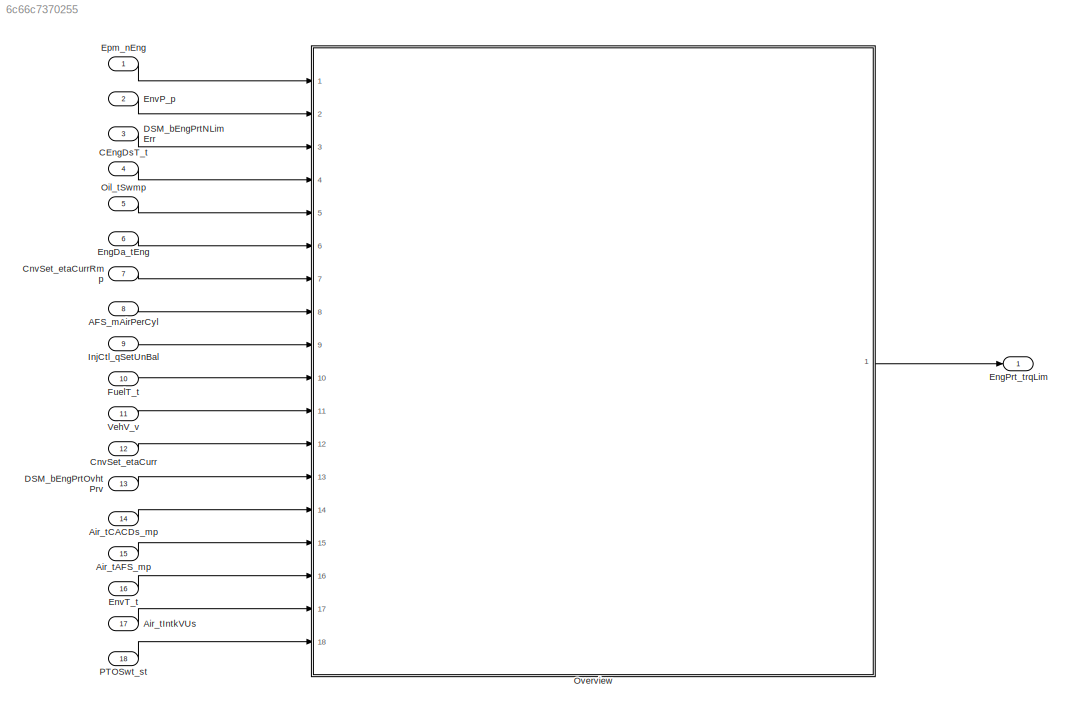
MODEL slx_6c66c7370255
KIND model
CONFIG AbsTol = auto
CONFIG EnableMultiTasking = off
CONFIG FixedStep = auto
CONFIG MaxStep = auto
CONFIG MinStep = auto
CONFIG RelTol = 1e-3
CONFIG SampleTimeConstraint = Unconstrained
CONFIG Solver = VariableStepAuto
CONFIG SolverName = VariableStepAuto
CONFIG StartTime = 0.0
CONFIG StopTime = 10.0
BLOCK [Inport] AFS_mAirPerCyl
  IconDisplay = Port number
  Port = 8
BLOCK [Inport] Air_tAFS_mp
  IconDisplay = Port number
  Port = 15
BLOCK [Inport] Air_tCACDs_mp
  IconDisplay = Port number
  Port = 14
BLOCK [Inport] Air_tIntkVUs
  IconDisplay = Port number
  Port = 17
BLOCK [Inport] CEngDsT_t
  IconDisplay = Port number
  Port = 4
BLOCK [Inport] CnvSet_etaCurr
  IconDisplay = Port number
  Port = 12
BLOCK [Inport] CnvSet_etaCurrRmp
  IconDisplay = Port number
  Port = 7
BLOCK [Inport] DSM_bEngPrtNLimErr
  IconDisplay = Port number
  Port = 3
BLOCK [Inport] DSM_bEngPrtOvhtPrv
  IconDisplay = Port number
  Port = 13
BLOCK [Inport] EngDa_tEng
  IconDisplay = Port number
  Port = 6
BLOCK [Outport] EngPrt_trqLim
  IconDisplay = Port number
BLOCK [Inport] EnvP_p
  IconDisplay = Port number
  Port = 2
BLOCK [Inport] EnvT_t
  IconDisplay = Port number
  Port = 16
BLOCK [Inport] Epm_nEng
  IconDisplay = Port number
BLOCK [Inport] FuelT_t
  IconDisplay = Port number
  Port = 10
BLOCK [Inport] InjCtl_qSetUnBal
  IconDisplay = Port number
  Port = 9
BLOCK [Inport] Oil_tSwmp
  IconDisplay = Port number
  Port = 5
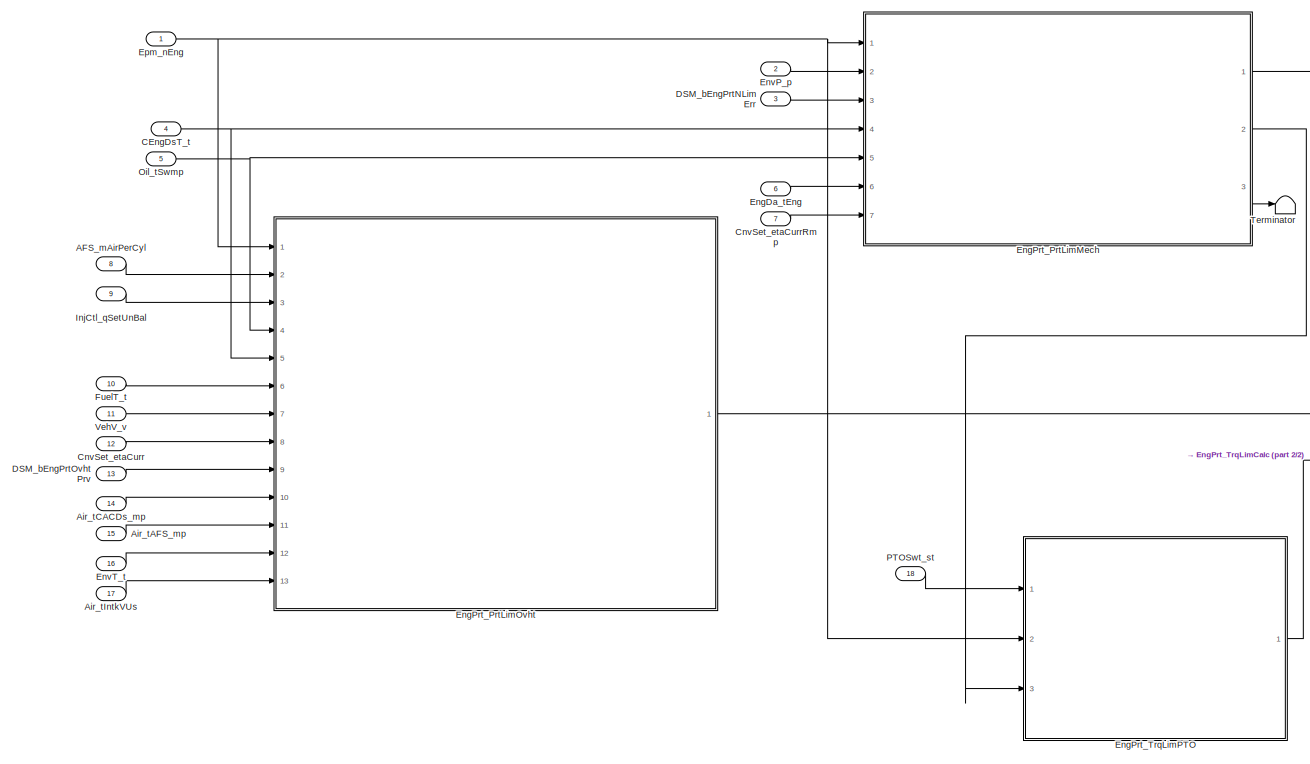
[diagram: Overview - part 1/2, center side, full height]
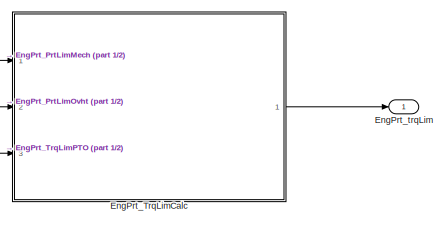
[diagram: Overview - part 2/2, middle right region]
BLOCK [SubSystem] Overview
  Ports = [18, 1]
  RequestExecContextInheritance = off
BLOCK [Inport] Overview/AFS_mAirPerCyl
  IconDisplay = Port number
  Port = 8
BLOCK [Inport] Overview/Air_tAFS_mp
  IconDisplay = Port number
  Port = 15
BLOCK [Inport] Overview/Air_tCACDs_mp
  IconDisplay = Port number
  Port = 14
BLOCK [Inport] Overview/Air_tIntkVUs
  IconDisplay = Port number
  Port = 17
BLOCK [Inport] Overview/CEngDsT_t
  IconDisplay = Port number
  Port = 4
BLOCK [Inport] Overview/CnvSet_etaCurr
  IconDisplay = Port number
  Port = 12
BLOCK [Inport] Overview/CnvSet_etaCurrRmp
  IconDisplay = Port number
  Port = 7
BLOCK [Inport] Overview/DSM_bEngPrtNLimErr
  IconDisplay = Port number
  Port = 3
BLOCK [Inport] Overview/DSM_bEngPrtOvhtPrv
  IconDisplay = Port number
  Port = 13
BLOCK [Inport] Overview/EngDa_tEng
  IconDisplay = Port number
  Port = 6
BLOCK [ModelReference] Overview/EngPrt_PrtLimMech
  ModelNameDialog = EngPrt_PrtLimMech
  ModelReferenceVersion = 1.55
  Ports = [7, 3]
BLOCK [ModelReference] Overview/EngPrt_PrtLimOvht
  ModelNameDialog = EngPrt_PrtLimOvht
  ModelReferenceVersion = 1.64
  Ports = [13, 1]
BLOCK [ModelReference] Overview/EngPrt_TrqLimCalc
  ModelNameDialog = EngPrt_TrqLimCalc
  ModelReferenceVersion = 1.49
  Ports = [3, 1]
BLOCK [ModelReference] Overview/EngPrt_TrqLimPTO
  ModelNameDialog = EngPrt_TrqLimPTO
  ModelReferenceVersion = 1.49
  Ports = [3, 1]
BLOCK [Outport] Overview/EngPrt_trqLim
  IconDisplay = Port number
BLOCK [Inport] Overview/EnvP_p
  IconDisplay = Port number
  Port = 2
BLOCK [Inport] Overview/EnvT_t
  IconDisplay = Port number
  Port = 16
BLOCK [Inport] Overview/Epm_nEng
  IconDisplay = Port number
BLOCK [Inport] Overview/FuelT_t
  IconDisplay = Port number
  Port = 10
BLOCK [Inport] Overview/InjCtl_qSetUnBal
  IconDisplay = Port number
  Port = 9
BLOCK [Inport] Overview/Oil_tSwmp
  IconDisplay = Port number
  Port = 5
BLOCK [Inport] Overview/PTOSwt_st
  IconDisplay = Port number
  Port = 18
BLOCK [Terminator] Overview/Terminator
BLOCK [Inport] Overview/VehV_v
  IconDisplay = Port number
  Port = 11
BLOCK [Inport] PTOSwt_st
  IconDisplay = Port number
  Port = 18
BLOCK [Inport] VehV_v
  IconDisplay = Port number
  Port = 11
LINE AFS_mAirPerCyl:1 -> Overview:8
LINE Air_tAFS_mp:1 -> Overview:15
LINE Air_tCACDs_mp:1 -> Overview:14
LINE Air_tIntkVUs:1 -> Overview:17
LINE CEngDsT_t:1 -> Overview:4
LINE CnvSet_etaCurr:1 -> Overview:12
LINE CnvSet_etaCurrRmp:1 -> Overview:7
LINE DSM_bEngPrtNLimErr:1 -> Overview:3
LINE DSM_bEngPrtOvhtPrv:1 -> Overview:13
LINE EngDa_tEng:1 -> Overview:6
LINE EnvP_p:1 -> Overview:2
LINE EnvT_t:1 -> Overview:16
LINE Epm_nEng:1 -> Overview:1
LINE FuelT_t:1 -> Overview:10
LINE InjCtl_qSetUnBal:1 -> Overview:9
LINE Oil_tSwmp:1 -> Overview:5
LINE Overview/AFS_mAirPerCyl:1 -> Overview/EngPrt_PrtLimOvht:2
LINE Overview/Air_tAFS_mp:1 -> Overview/EngPrt_PrtLimOvht:11
LINE Overview/Air_tCACDs_mp:1 -> Overview/EngPrt_PrtLimOvht:10
LINE Overview/Air_tIntkVUs:1 -> Overview/EngPrt_PrtLimOvht:13
NET Overview/CEngDsT_t:1 -> Overview/EngPrt_PrtLimMech:4, Overview/EngPrt_PrtLimOvht:5
LINE Overview/CnvSet_etaCurr:1 -> Overview/EngPrt_PrtLimOvht:8
LINE Overview/CnvSet_etaCurrRmp:1 -> Overview/EngPrt_PrtLimMech:7
LINE Overview/DSM_bEngPrtNLimErr:1 -> Overview/EngPrt_PrtLimMech:3
LINE Overview/DSM_bEngPrtOvhtPrv:1 -> Overview/EngPrt_PrtLimOvht:9
LINE Overview/EngDa_tEng:1 -> Overview/EngPrt_PrtLimMech:6
LINE Overview/EngPrt_PrtLimMech:1 -> Overview/EngPrt_TrqLimCalc:1
LINE Overview/EngPrt_PrtLimMech:2 -> Overview/EngPrt_TrqLimPTO:3
LINE Overview/EngPrt_PrtLimMech:3 -> Overview/Terminator:1
LINE Overview/EngPrt_PrtLimOvht:1 -> Overview/EngPrt_TrqLimCalc:2
LINE Overview/EngPrt_TrqLimCalc:1 -> Overview/EngPrt_trqLim:1
LINE Overview/EngPrt_TrqLimPTO:1 -> Overview/EngPrt_TrqLimCalc:3
LINE Overview/EnvP_p:1 -> Overview/EngPrt_PrtLimMech:2
LINE Overview/EnvT_t:1 -> Overview/EngPrt_PrtLimOvht:12
NET Overview/Epm_nEng:1 -> Overview/EngPrt_PrtLimMech:1, Overview/EngPrt_PrtLimOvht:1, Overview/EngPrt_TrqLimPTO:2
LINE Overview/FuelT_t:1 -> Overview/EngPrt_PrtLimOvht:6
LINE Overview/InjCtl_qSetUnBal:1 -> Overview/EngPrt_PrtLimOvht:3
NET Overview/Oil_tSwmp:1 -> Overview/EngPrt_PrtLimMech:5, Overview/EngPrt_PrtLimOvht:4
LINE Overview/PTOSwt_st:1 -> Overview/EngPrt_TrqLimPTO:1
LINE Overview/VehV_v:1 -> Overview/EngPrt_PrtLimOvht:7
LINE Overview:1 -> EngPrt_trqLim:1
LINE PTOSwt_st:1 -> Overview:18
LINE VehV_v:1 -> Overview:11
note: NET lines group one-source signal fan-out (src -> all destinations, sorted); 1:1 wires keep LINE
